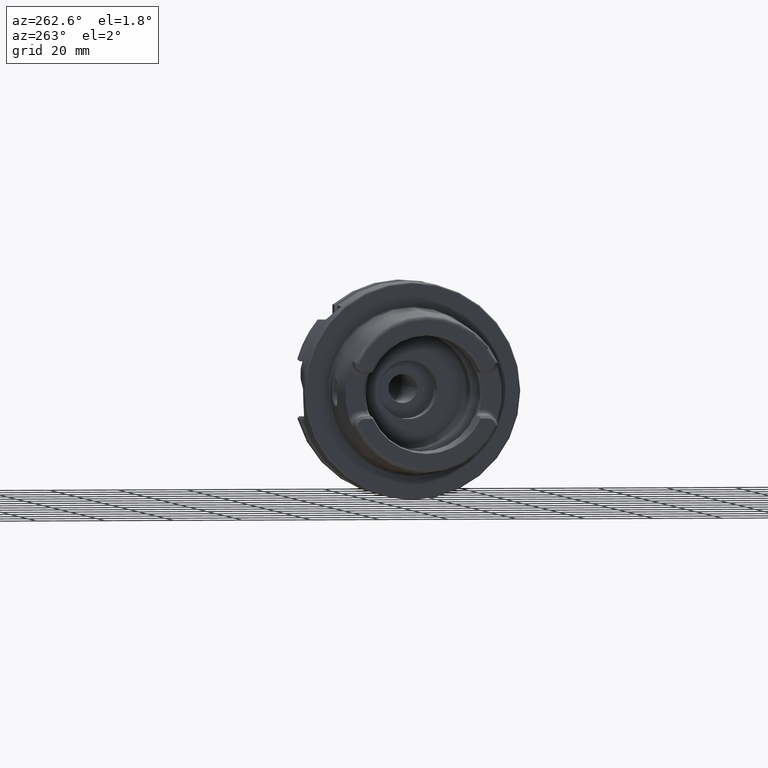
[diagram: clean part render]
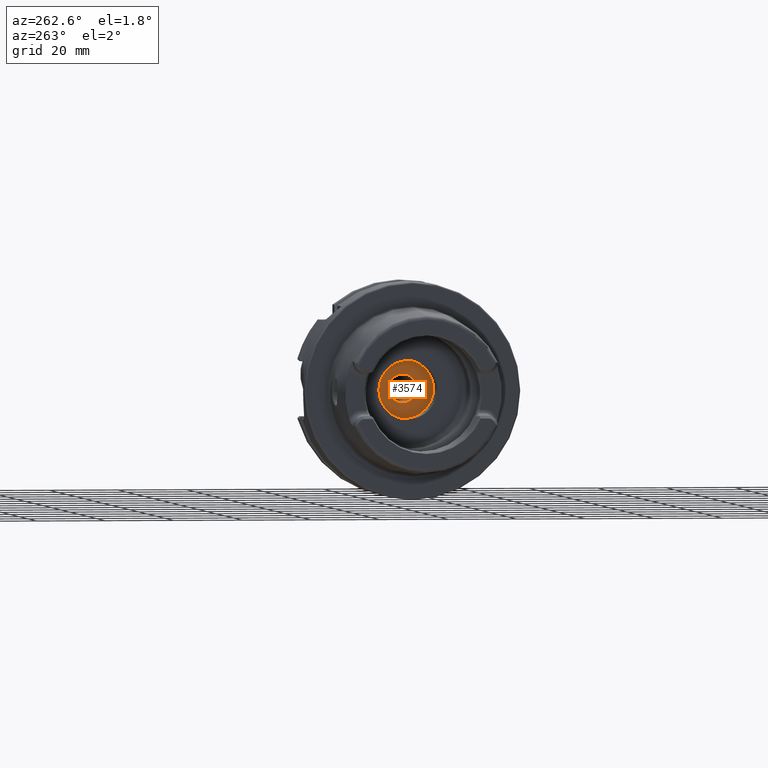
[diagram: same view with one face highlighted and labeled with its STEP entity id]
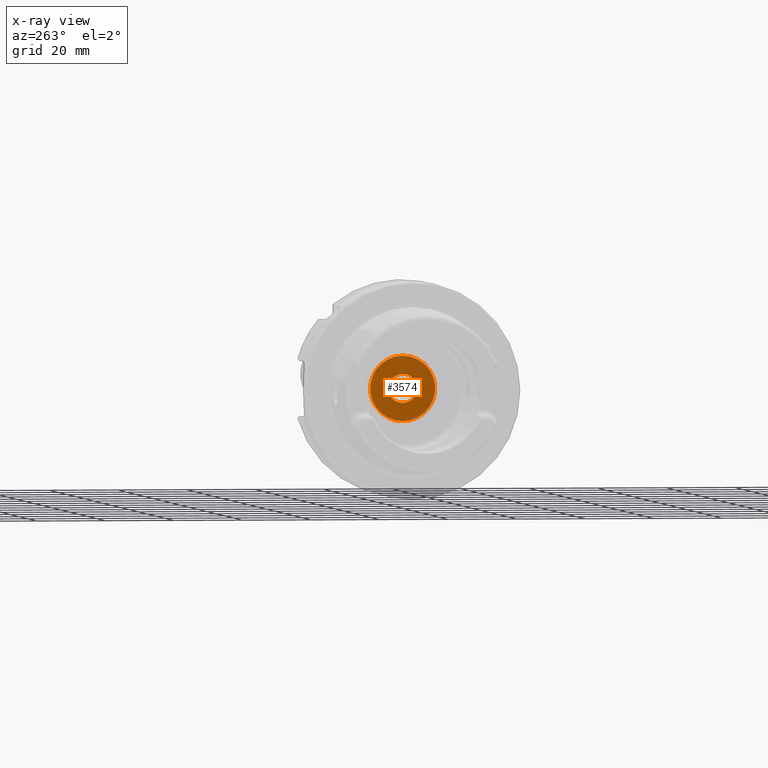
[diagram: x-ray of the same camera — body ghosted, the highlighted face saturated]
A machine part, auxiliary view. The second image highlights one B-rep face of the part: STEP entity #3574.
The next image is the same camera in x-ray: the body ghosted, the highlighted face saturated — about 0% of this face is hidden behind the body in this view.
In plain terms, the highlighted planar face has unit normal (1, 0, 0).
Its self-contained STEP definition (entity closure, byte-faithful):
#382=CARTESIAN_POINT('',(2.2E1,0.E0,0.E0));
#383=DIRECTION('',(-1.E0,0.E0,0.E0));
#384=DIRECTION('',(0.E0,0.E0,-1.E0));
#385=AXIS2_PLACEMENT_3D('',#382,#383,#384);
#391=CARTESIAN_POINT('',(2.2E1,0.E0,0.E0));
#392=DIRECTION('',(1.E0,0.E0,0.E0));
#393=DIRECTION('',(0.E0,0.E0,-1.E0));
#394=AXIS2_PLACEMENT_3D('',#391,#392,#393);
#396=CARTESIAN_POINT('',(2.2E1,0.E0,0.E0));
#397=DIRECTION('',(-1.E0,0.E0,0.E0));
#398=DIRECTION('',(0.E0,1.E0,0.E0));
#399=AXIS2_PLACEMENT_3D('',#396,#397,#398);
#401=CARTESIAN_POINT('',(2.2E1,0.E0,0.E0));
#402=DIRECTION('',(-1.E0,0.E0,0.E0));
#403=DIRECTION('',(0.E0,-1.E0,0.E0));
#404=AXIS2_PLACEMENT_3D('',#401,#402,#403);
#2731=CARTESIAN_POINT('',(2.2E1,0.E0,-9.5E0));
#2733=VERTEX_POINT('',#2731);
#2735=CARTESIAN_POINT('',(2.2E1,0.E0,9.5E0));
#2737=VERTEX_POINT('',#2735);
#3174=CARTESIAN_POINT('',(2.2E1,4.2E0,0.E0));
#3175=CARTESIAN_POINT('',(2.2E1,-4.2E0,0.E0));
#3176=VERTEX_POINT('',#3174);
#3177=VERTEX_POINT('',#3175);
#3559=CARTESIAN_POINT('',(2.2E1,0.E0,0.E0));
#3560=DIRECTION('',(1.E0,0.E0,0.E0));
#3561=DIRECTION('',(0.E0,0.E0,1.E0));
#3562=AXIS2_PLACEMENT_3D('',#3559,#3560,#3561);
#3563=PLANE('',#3562);
#3564=ORIENTED_EDGE('',*,*,#3538,.F.);
#3565=ORIENTED_EDGE('',*,*,#3554,.T.);
#3566=EDGE_LOOP('',(#3564,#3565));
#3567=FACE_OUTER_BOUND('',#3566,.F.);
#3569=ORIENTED_EDGE('',*,*,#3568,.T.);
#3571=ORIENTED_EDGE('',*,*,#3570,.T.);
#3572=EDGE_LOOP('',(#3569,#3571));
#3573=FACE_BOUND('',#3572,.F.);
#3574=ADVANCED_FACE('',(#3567,#3573),#3563,.F.);
#386=CIRCLE('',#385,9.5E0);
#395=CIRCLE('',#394,9.5E0);
#400=CIRCLE('',#399,4.2E0);
#405=CIRCLE('',#404,4.2E0);
#3538=EDGE_CURVE('',#2733,#2737,#386,.T.);
#3554=EDGE_CURVE('',#2733,#2737,#395,.T.);
#3568=EDGE_CURVE('',#3176,#3177,#400,.T.);
#3570=EDGE_CURVE('',#3177,#3176,#405,.T.);